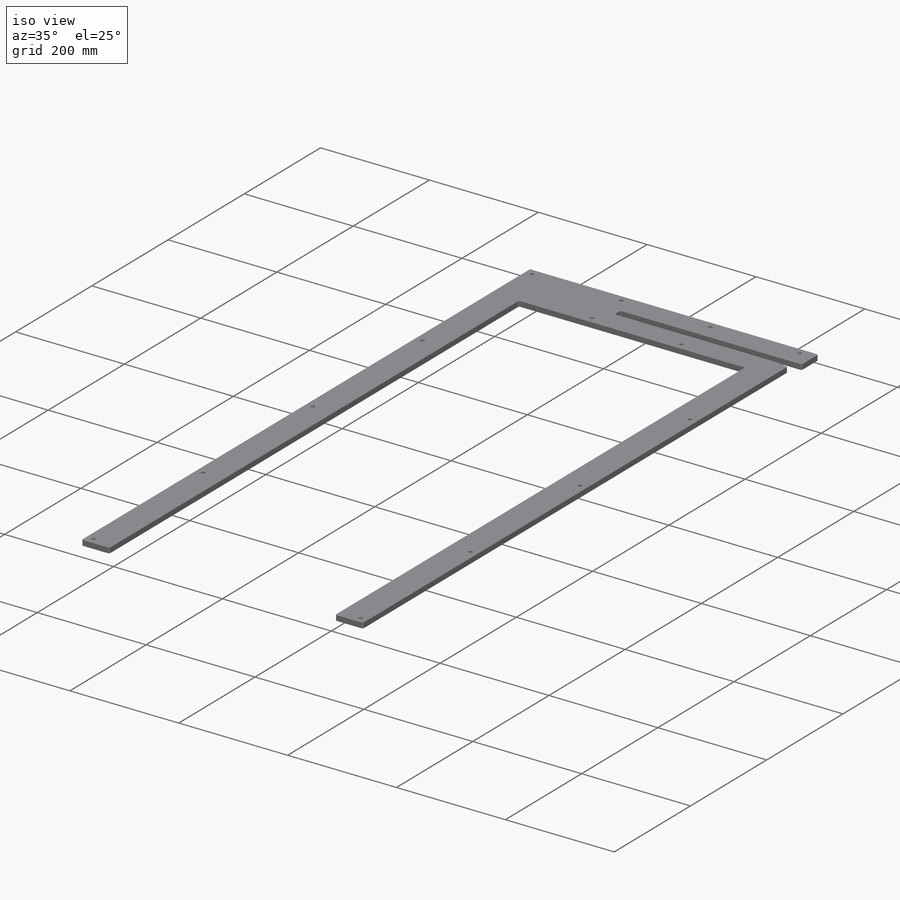
[diagram: iso view]
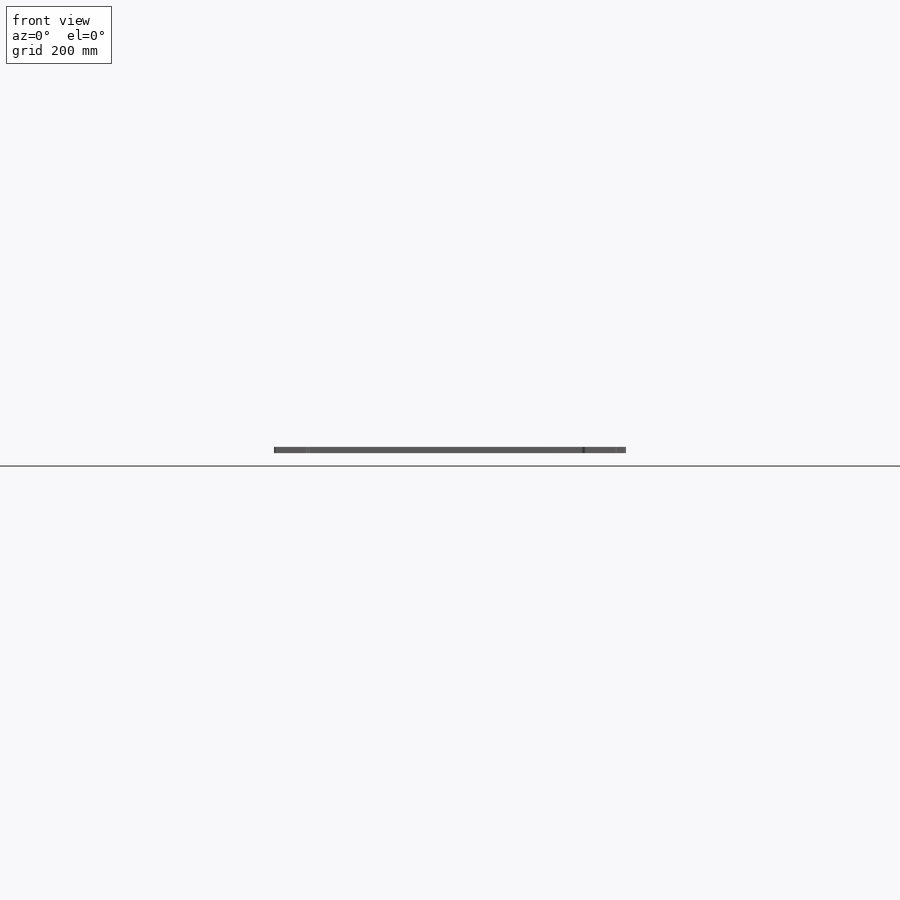
[diagram: front view]
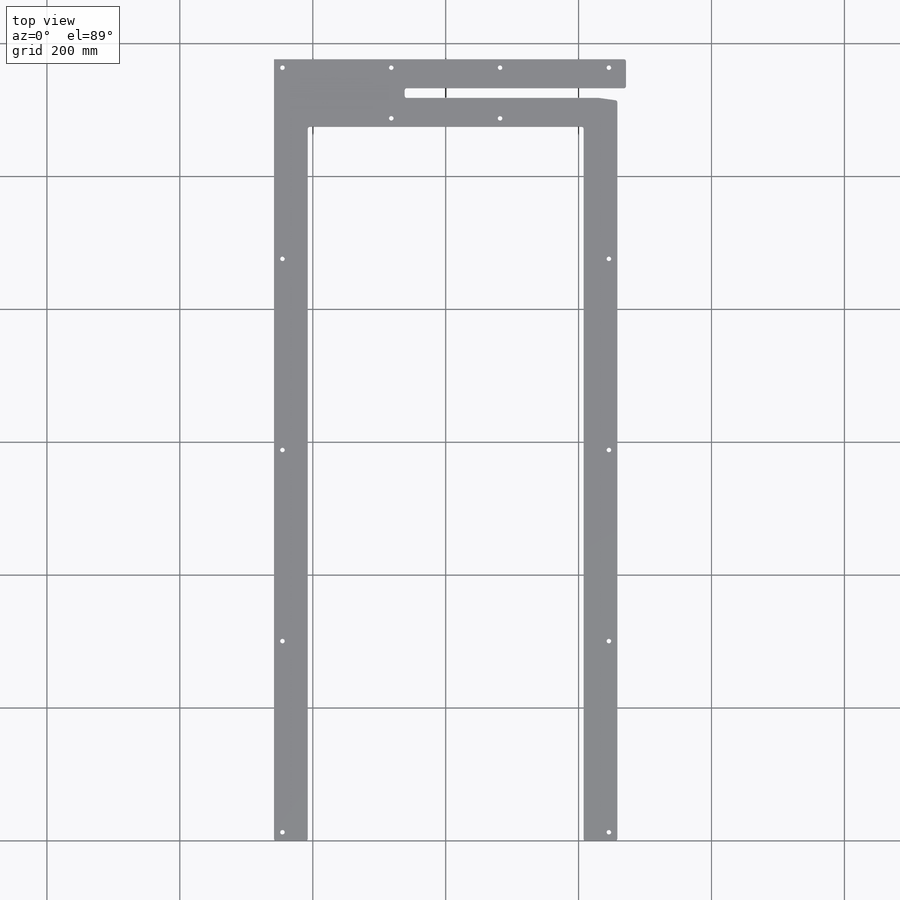
[diagram: top view]
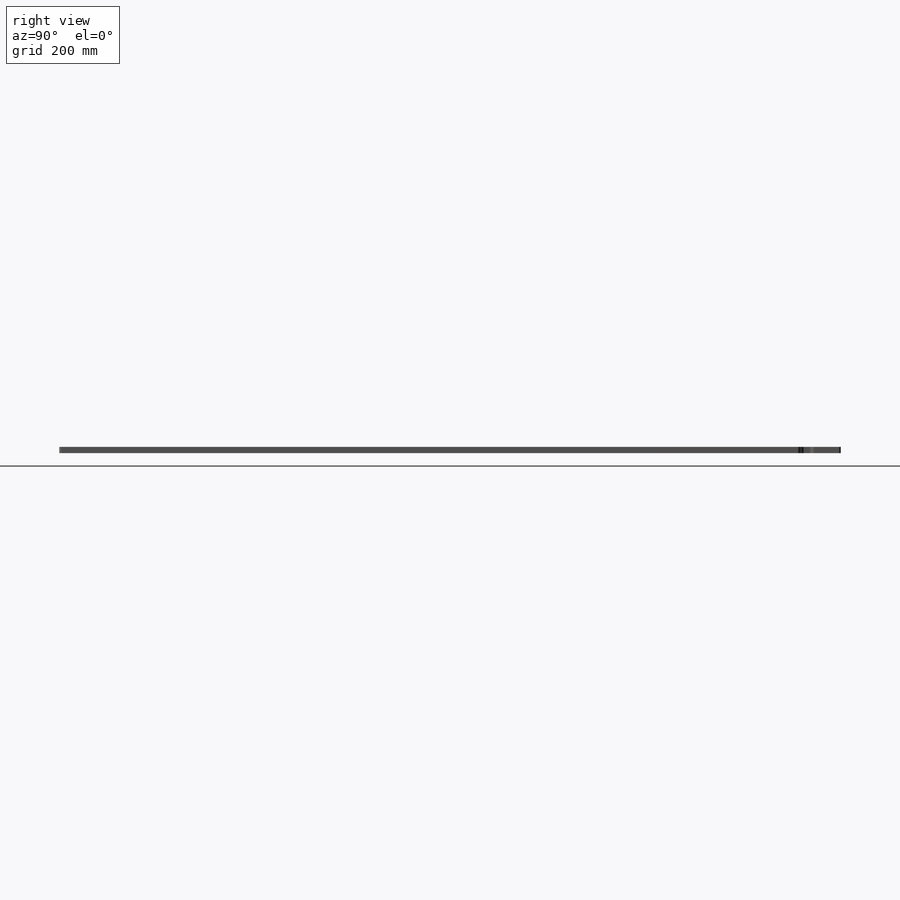
[diagram: right view]
SOLIDWORKS PART (.sldprt)
format: sldprt  version: not decoded by parser v0  size: 576,000 bytes
history: native  units: mm
features: sketch x6, pattern_linear x3, extrude x2, hole x2, fillet x2, move_body x2, material x1, mirror x1 (+11 scaffold rows collapsed; 2 parser-record rows omitted)
feature tree (32):
  scaffold x11  (default folders/planes/origin — collapsed)
  material  "PE Low/Medium Density"
  sketch  "Sketch1"  dims[c1.D1=516.6mm c1.D2=1176.0mm c1.D3=50.8mm c1.D4=101.6mm c1.D5=14.7mm c1.D6=368.0mm c1.D7=13.0mm c2.D6=320.0mm c2.D8=~52.098847mm c3.D8=8.0deg c3.D9=28.0mm]
  extrude  "Boss-Extrude1"  Depth=9.525mm
  sketch  "Sketch4"  dims[D1=200.0mm]
  extrude  "Boss-Extrude2"  [1 undecoded]
  hole  "CSK for 1/4 Flat Head Machine Screw (100)1"  Diameter=6.7564mm Depth=9.525mm
  sketch  "Sketch3"  dims[D1=12.7mm D2=12.7mm]
  sketch  "Sketch2"  dims[hole-wizard template sketch: 56 standard entries collapsed; hole parameters kept: c17.Near C'Sink Dia.=~17.644796mm c17.D4=~3.666174mm c17.Near C'Sink Angle=100.0deg]
  pattern_linear  "LPattern1"  Count1=2 Count2=5 Spacing1=491.2mm Spacing2=287.65mm
  pattern_linear  "LPattern3"  Count1=2 Count2=5 Spacing1=491.2mm Spacing2=313.05mm
  pattern_linear  "LPattern2"  Count1=3 Count2=2 Spacing1=163.733333mm Spacing2=76.2mm
  hole  "CSK for 1/4 Flat Head Machine Screw (100)2"  Diameter=6.7564mm Depth=9.52505mm
  sketch  "Sketch6"  dims[D1=12.7mm D2=12.7mm]
  sketch  "Sketch5"  dims[hole-wizard template sketch: 55 standard entries collapsed; hole parameters kept: c17.Thru Hole Depth=~9.52505mm c17.Near C'Sink Dia.=~17.644796mm c17.D4=~3.666174mm c17.Near C'Sink Angle=100.0deg]
  mirror  "Mirror1"
  fillet  "Fillet1"  Radius=3.175mm
  fillet  "Fillet2"  Radius=3.175mm
  parser-record x2  (decoder bookkeeping rows leaked as tree rows — omitted from the tree; the rows remain in map.json)
  move_body  "Body-Move/Copy1"
  move_body  "Body-Move/Copy2"
decode coverage: 14 of 18 modeling features carry decoded parameters
note: ~ marks probable driven/reference dimensions
note: 1 parameter value undecoded
note: suppression state not decoded; provenance and decode notes live in map.json
